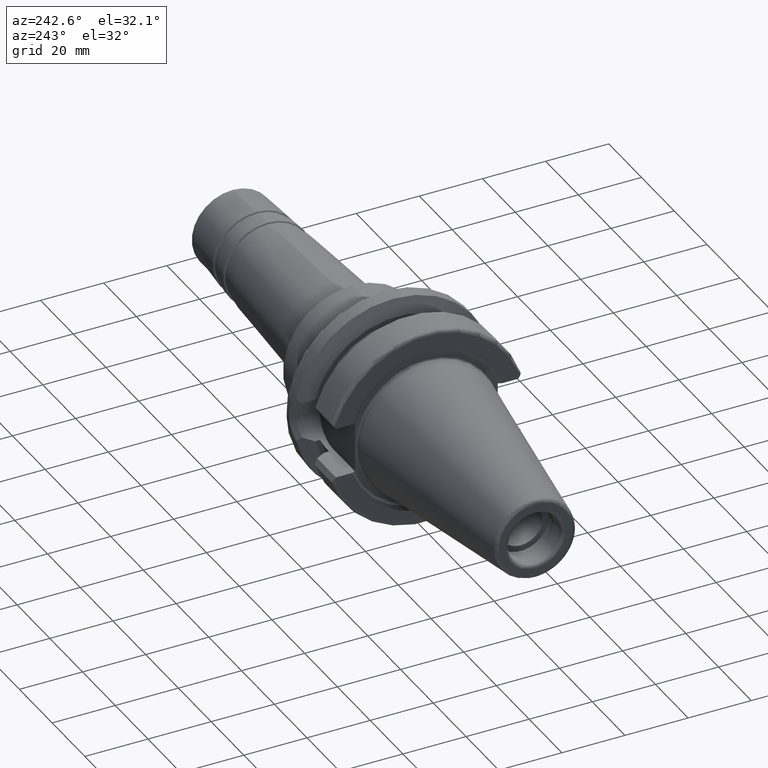
[diagram: clean part render]
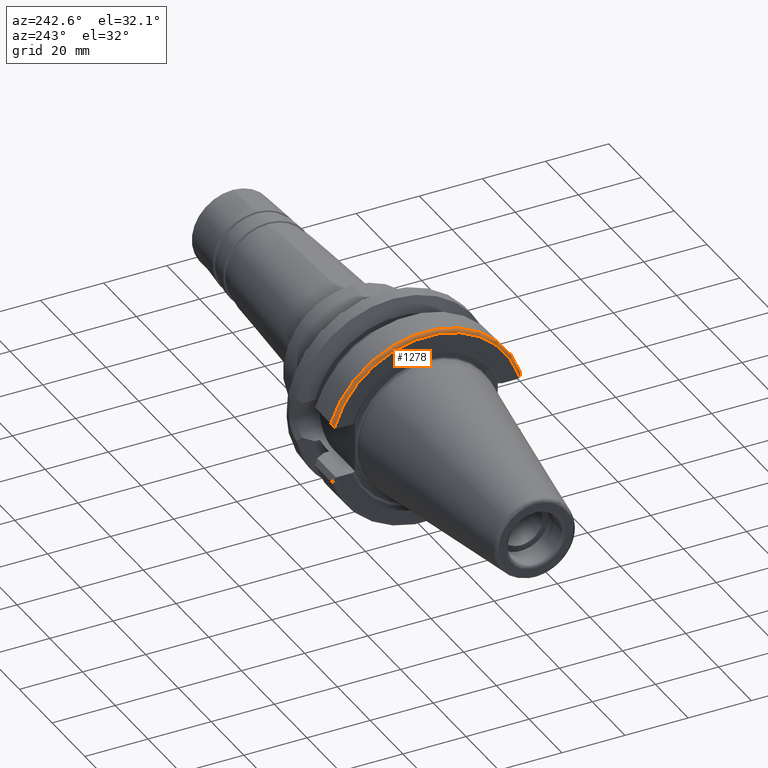
[diagram: same view with one face highlighted and labeled with its STEP entity id]
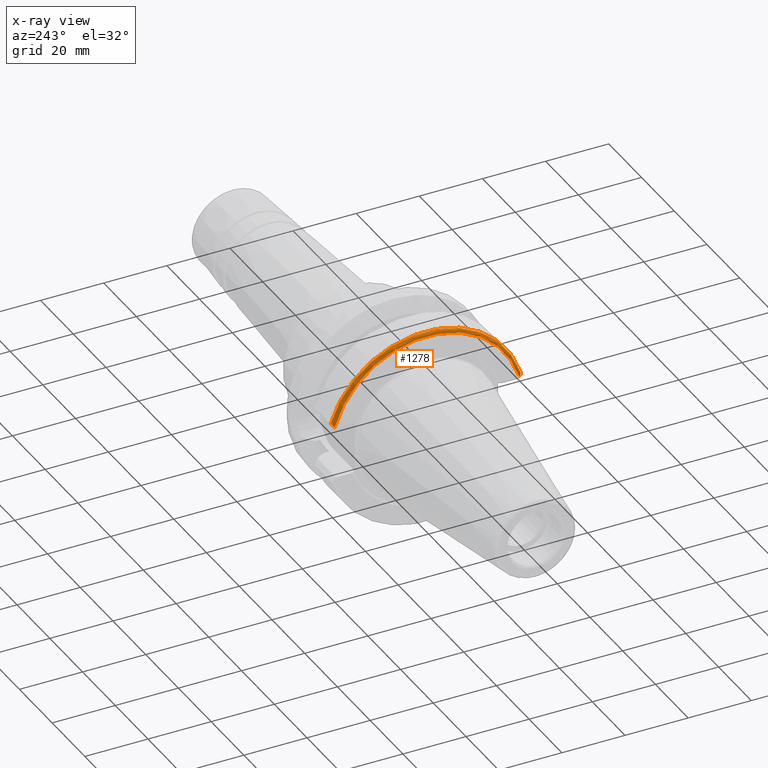
[diagram: x-ray of the same camera — body ghosted, the highlighted face saturated]
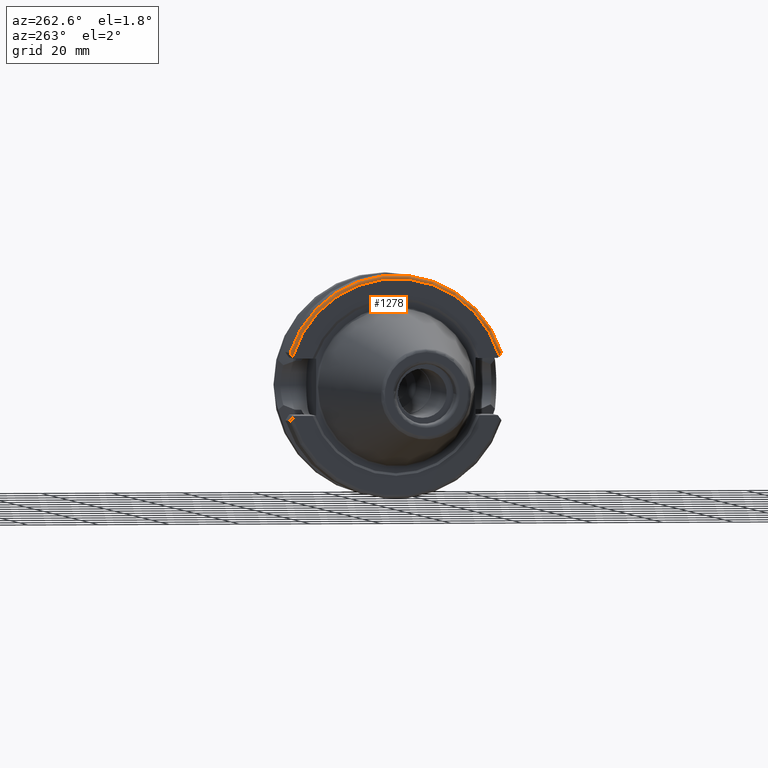
[diagram: same view with one face highlighted and labeled with its STEP entity id]
A machine part, auxiliary view. The second image highlights one B-rep face of the part: STEP entity #1278.
The next image is the same camera in x-ray: the body ghosted, the highlighted face saturated — about 0% of this face is hidden behind the body in this view.
A second angle (auxiliary view) of the same face is appended — the face is thin or edge-on in the first view.
In plain terms, the highlighted toroidal blend (fillet) surface has major radius 30.5 mm and minor (blend) radius 1 mm.
Its self-contained STEP definition (entity closure, byte-faithful):
#38=B_SPLINE_CURVE_WITH_KNOTS('',3,(#2249,#2250,#2251,#2252,#2253,#2254,
#2255,#2256,#2257,#2258),.UNSPECIFIED.,.F.,.F.,(4,2,2,2,4),(0.,0.0345693522183134,
0.0730574737661987,0.116949965881852,0.166231853210586),.UNSPECIFIED.);
#39=B_SPLINE_CURVE_WITH_KNOTS('',3,(#2275,#2276,#2277,#2278,#2279,#2280,
#2281,#2282,#2283,#2284),.UNSPECIFIED.,.F.,.F.,(4,2,2,2,4),(-0.166231853210586,
-0.116949965881852,-0.0730574737661988,-0.0345693522183133,0.),
 .UNSPECIFIED.);
#294=FACE_OUTER_BOUND('',#379,.T.);
#379=EDGE_LOOP('',(#996,#997,#998,#999));
#477=CIRCLE('',#1435,30.5);
#479=CIRCLE('',#1438,31.5);
#574=VERTEX_POINT('',#2246);
#575=VERTEX_POINT('',#2248);
#577=VERTEX_POINT('',#2263);
#581=VERTEX_POINT('',#2273);
#726=EDGE_CURVE('',#574,#575,#38,.T.);
#729=EDGE_CURVE('',#577,#575,#477,.T.);
#734=EDGE_CURVE('',#581,#574,#479,.T.);
#735=EDGE_CURVE('',#577,#581,#39,.T.);
#996=ORIENTED_EDGE('',*,*,#726,.F.);
#997=ORIENTED_EDGE('',*,*,#734,.F.);
#998=ORIENTED_EDGE('',*,*,#735,.F.);
#999=ORIENTED_EDGE('',*,*,#729,.T.);
#1234=TOROIDAL_SURFACE('',#1437,30.5,1.00000000000001);
#1278=ADVANCED_FACE('',(#294),#1234,.T.);
#1435=AXIS2_PLACEMENT_3D('',#2264,#1726,#1727);
#1437=AXIS2_PLACEMENT_3D('',#2272,#1733,#1734);
#1438=AXIS2_PLACEMENT_3D('',#2274,#1735,#1736);
#1726=DIRECTION('center_axis',(1.,0.,0.));
#1727=DIRECTION('ref_axis',(0.,0.,-1.));
#1733=DIRECTION('center_axis',(1.,0.,0.));
#1734=DIRECTION('ref_axis',(0.,-1.22464679914735E-16,1.));
#1735=DIRECTION('center_axis',(1.,0.,0.));
#1736=DIRECTION('ref_axis',(0.,0.,-1.));
#2246=CARTESIAN_POINT('',(1.99999999999999,-30.0059801089944,9.58598757033586));
#2248=CARTESIAN_POINT('',(0.999999999999992,-29.2635810473993,8.59609354778619));
#2249=CARTESIAN_POINT('Ctrl Pts',(1.99999999999999,-30.0059801089944,9.58598757033584));
#2250=CARTESIAN_POINT('Ctrl Pts',(1.88476882593895,-30.0059801089944,9.58598757033584));
#2251=CARTESIAN_POINT('Ctrl Pts',(1.7500257349215,-29.9873423518317,9.56113650927783));
#2252=CARTESIAN_POINT('Ctrl Pts',(1.52925579784497,-29.9256717286954,9.47890663538984));
#2253=CARTESIAN_POINT('Ctrl Pts',(1.40782357323147,-29.868892414161,9.40319869478267));
#2254=CARTESIAN_POINT('Ctrl Pts',(1.22617276763937,-29.7453336353869,9.23844889528911));
#2255=CARTESIAN_POINT('Ctrl Pts',(1.13925367477065,-29.6538085089851,9.11641186665444));
#2256=CARTESIAN_POINT('Ctrl Pts',(1.03265244131678,-29.4787835094864,8.88303845636437));
#2257=CARTESIAN_POINT('Ctrl Pts',(0.999999999999989,-29.3621429990468,8.7275132812339));
#2258=CARTESIAN_POINT('Ctrl Pts',(0.999999999999988,-29.2635810473993,8.5960935477862));
#2263=CARTESIAN_POINT('',(0.999999999999992,29.2635810473993,8.59609354778619));
#2264=CARTESIAN_POINT('Origin',(0.999999999999992,0.,0.));
#2272=CARTESIAN_POINT('Origin',(1.99999999999999,0.,0.));
#2273=CARTESIAN_POINT('',(1.99999999999999,30.0059801089944,9.58598757033586));
#2274=CARTESIAN_POINT('Origin',(1.99999999999999,0.,0.));
#2275=CARTESIAN_POINT('Ctrl Pts',(0.999999999999988,29.2635810473993,8.59609354778619));
#2276=CARTESIAN_POINT('Ctrl Pts',(0.999999999999989,29.3621429990468,8.7275132812339));
#2277=CARTESIAN_POINT('Ctrl Pts',(1.03265244131678,29.4787835094864,8.88303845636437));
#2278=CARTESIAN_POINT('Ctrl Pts',(1.13925367477065,29.6538085089851,9.11641186665444));
#2279=CARTESIAN_POINT('Ctrl Pts',(1.22617276763937,29.7453336353869,9.23844889528911));
#2280=CARTESIAN_POINT('Ctrl Pts',(1.40782357323147,29.868892414161,9.40319869478267));
#2281=CARTESIAN_POINT('Ctrl Pts',(1.52925579784497,29.9256717286954,9.47890663538984));
#2282=CARTESIAN_POINT('Ctrl Pts',(1.75002573492151,29.9873423518317,9.56113650927783));
#2283=CARTESIAN_POINT('Ctrl Pts',(1.88476882593895,30.0059801089944,9.58598757033584));
#2284=CARTESIAN_POINT('Ctrl Pts',(1.99999999999999,30.0059801089944,9.58598757033584));